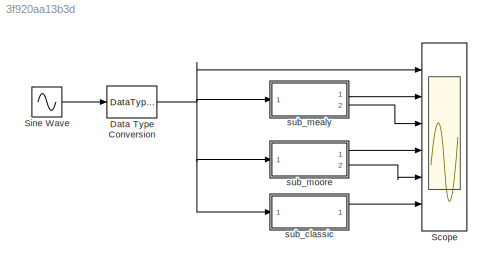
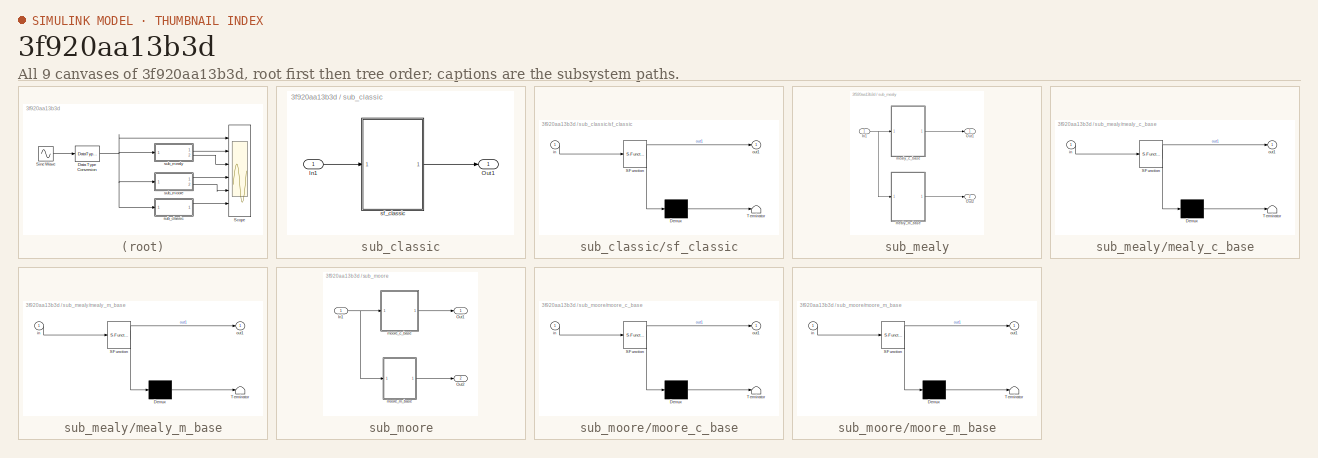
[diagram: thumbnail index - all 9 canvases of the model, root first then tree order]
MODEL slx_3f920aa13b3d
KIND model
CONFIG AbsTol = auto
CONFIG FixedStep = auto
CONFIG MaxStep = auto
CONFIG MinStep = auto
CONFIG RelTol = 1e-3
CONFIG SampleTimeConstraint = Unconstrained
CONFIG Solver = FixedStepDiscrete
CONFIG SolverMode = SingleTasking
CONFIG SolverName = FixedStepDiscrete
CONFIG StartTime = 0.0
CONFIG StopTime = 1
BLOCK [DataTypeConversion] Data Type Conversion
  OutDataTypeStr = fixdt(1,16,12)
  RndMeth = Floor
  SaturateOnIntegerOverflow = off
BLOCK [Scope] Scope
  NumInputPorts = 6
  Ports = [6]
  ScopeSpecificationString = Simulink.scopes.TimeScopeBlockCfg('CurrentConfiguration', extmgr.ConfigurationSet(extmgr.Configuration('Core','General UI',true),extmgr.Configuration('Core','Source UI',true),extmgr.Configuration('Sources','WiredSimulink',true,'DataLoggingSaveFormat','StructureWithTime','DataLoggingDecimation','1','DataLoggingDecimateData',true),extmgr.Configuration('Visuals','Time Domain',true,'SerializedDisplays...<+6464ch>
BLOCK [Sin] Sine Wave
  Amplitude = 4
  Frequency = 20
  Ports = [0, 1]
  SampleTime = 1/100
BLOCK [SubSystem] sub_classic
  Ports = [1, 1]
  RequestExecContextInheritance = off
  Variant = off
BLOCK [Inport] sub_classic/In1
  IconDisplay = Port number
BLOCK [Outport] sub_classic/Out1
  IconDisplay = Port number
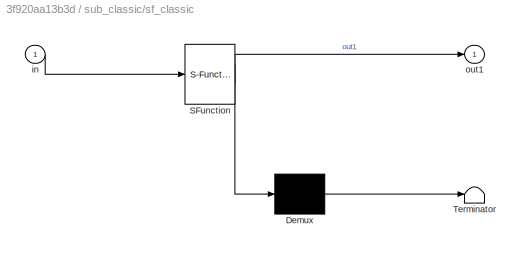
BLOCK [SubSystem] sub_classic/sf_classic
  ErrorFcn = Stateflow.Translate.translate
  PermitHierarchicalResolution = ExplicitOnly
  Ports = [1, 1]
  RequestExecContextInheritance = off
  SFBlockType = Chart
  TreatAsAtomicUnit = on
  Variant = off
BLOCK [Demux] sub_classic/sf_classic/ Demux 
  Outputs = 1
  Ports = [1, 1]
BLOCK [S-Function] sub_classic/sf_classic/ SFunction 
  EnableBusSupport = on
  FunctionName = sf_sfun
  PortCounts = [1 2]
  Ports = [1, 2]
  SFunctionDeploymentMode = off
  Tag = Stateflow S-Function sf_basic 5
BLOCK [Terminator] sub_classic/sf_classic/ Terminator 
BLOCK [Inport] sub_classic/sf_classic/in
  IconDisplay = Port number
BLOCK [Outport] sub_classic/sf_classic/out1
  IconDisplay = Port number
BLOCK [SubSystem] sub_mealy
  Ports = [1, 2]
  RequestExecContextInheritance = off
  Variant = off
BLOCK [Inport] sub_mealy/In1
  IconDisplay = Port number
BLOCK [Outport] sub_mealy/Out1
  IconDisplay = Port number
BLOCK [Outport] sub_mealy/Out2
  IconDisplay = Port number
  Port = 2
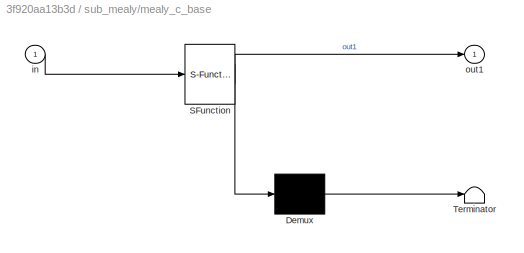
BLOCK [SubSystem] sub_mealy/mealy_c_base
  ErrorFcn = Stateflow.Translate.translate
  PermitHierarchicalResolution = ExplicitOnly
  Ports = [1, 1]
  RequestExecContextInheritance = off
  SFBlockType = Chart
  TreatAsAtomicUnit = on
  Variant = off
BLOCK [Demux] sub_mealy/mealy_c_base/ Demux 
  Outputs = 1
  Ports = [1, 1]
BLOCK [S-Function] sub_mealy/mealy_c_base/ SFunction 
  EnableBusSupport = on
  FunctionName = sf_sfun
  PortCounts = [1 2]
  Ports = [1, 2]
  SFunctionDeploymentMode = off
  Tag = Stateflow S-Function sf_basic 1
BLOCK [Terminator] sub_mealy/mealy_c_base/ Terminator 
BLOCK [Inport] sub_mealy/mealy_c_base/in
  IconDisplay = Port number
BLOCK [Outport] sub_mealy/mealy_c_base/out1
  IconDisplay = Port number
BLOCK [SubSystem] sub_mealy/mealy_m_base
  ErrorFcn = Stateflow.Translate.translate
  PermitHierarchicalResolution = ExplicitOnly
  Ports = [1, 1]
  RequestExecContextInheritance = off
  SFBlockType = Chart
  TreatAsAtomicUnit = on
  Variant = off
BLOCK [Demux] sub_mealy/mealy_m_base/ Demux 
  Outputs = 1
  Ports = [1, 1]
BLOCK [S-Function] sub_mealy/mealy_m_base/ SFunction 
  EnableBusSupport = on
  FunctionName = sf_sfun
  PortCounts = [1 2]
  Ports = [1, 2]
  SFunctionDeploymentMode = off
  Tag = Stateflow S-Function sf_basic 3
BLOCK [Terminator] sub_mealy/mealy_m_base/ Terminator 
BLOCK [Inport] sub_mealy/mealy_m_base/in
  IconDisplay = Port number
BLOCK [Outport] sub_mealy/mealy_m_base/out1
  IconDisplay = Port number
BLOCK [SubSystem] sub_moore
  Ports = [1, 2]
  RequestExecContextInheritance = off
  Variant = off
BLOCK [Inport] sub_moore/In1
  IconDisplay = Port number
BLOCK [Outport] sub_moore/Out1
  IconDisplay = Port number
BLOCK [Outport] sub_moore/Out2
  IconDisplay = Port number
  Port = 2
BLOCK [SubSystem] sub_moore/moore_c_base
  ErrorFcn = Stateflow.Translate.translate
  PermitHierarchicalResolution = ExplicitOnly
  Ports = [1, 1]
  RequestExecContextInheritance = off
  SFBlockType = Chart
  TreatAsAtomicUnit = on
  Variant = off
BLOCK [Demux] sub_moore/moore_c_base/ Demux 
  Outputs = 1
  Ports = [1, 1]
BLOCK [S-Function] sub_moore/moore_c_base/ SFunction 
  EnableBusSupport = on
  FunctionName = sf_sfun
  PortCounts = [1 2]
  Ports = [1, 2]
  SFunctionDeploymentMode = off
  Tag = Stateflow S-Function sf_basic 4
BLOCK [Terminator] sub_moore/moore_c_base/ Terminator 
BLOCK [Inport] sub_moore/moore_c_base/in
  IconDisplay = Port number
BLOCK [Outport] sub_moore/moore_c_base/out1
  IconDisplay = Port number
BLOCK [SubSystem] sub_moore/moore_m_base
  ErrorFcn = Stateflow.Translate.translate
  PermitHierarchicalResolution = ExplicitOnly
  Ports = [1, 1]
  RequestExecContextInheritance = off
  SFBlockType = Chart
  TreatAsAtomicUnit = on
  Variant = off
BLOCK [Demux] sub_moore/moore_m_base/ Demux 
  Outputs = 1
  Ports = [1, 1]
BLOCK [S-Function] sub_moore/moore_m_base/ SFunction 
  EnableBusSupport = on
  FunctionName = sf_sfun
  PortCounts = [1 2]
  Ports = [1, 2]
  SFunctionDeploymentMode = off
  Tag = Stateflow S-Function sf_basic 2
BLOCK [Terminator] sub_moore/moore_m_base/ Terminator 
BLOCK [Inport] sub_moore/moore_m_base/in
  IconDisplay = Port number
BLOCK [Outport] sub_moore/moore_m_base/out1
  IconDisplay = Port number
NET Data Type Conversion:1 -> Scope:1, sub_classic:1, sub_mealy:1, sub_moore:1
LINE Sine Wave:1 -> Data Type Conversion:1
LINE sub_classic/In1:1 -> sub_classic/sf_classic:1
LINE sub_classic/sf_classic:1 -> sub_classic/Out1:1
LINE sub_classic:1 -> Scope:6
NET sub_mealy/In1:1 -> sub_mealy/mealy_c_base:1, sub_mealy/mealy_m_base:1
LINE sub_mealy/mealy_c_base:1 -> sub_mealy/Out1:1
LINE sub_mealy/mealy_m_base:1 -> sub_mealy/Out2:1
LINE sub_mealy:1 -> Scope:2
LINE sub_mealy:2 -> Scope:3
NET sub_moore/In1:1 -> sub_moore/moore_c_base:1, sub_moore/moore_m_base:1
LINE sub_moore/moore_c_base:1 -> sub_moore/Out1:1
LINE sub_moore/moore_m_base:1 -> sub_moore/Out2:1
LINE sub_moore:1 -> Scope:4
LINE sub_moore:2 -> Scope:5
note: NET lines group one-source signal fan-out (src -> all destinations, sorted); 1:1 wires keep LINE
CHART sub_mealy/mealy_c_base states=3 transitions=8
  STATE_LABEL 'Init/'
  STATE_LABEL 'On1/'
  STATE_LABEL 'Off1/'
CHART sub_moore/moore_m_base states=3 transitions=8
  STATE_LABEL 'Init/\nout1 = int16(2);'
  STATE_LABEL 'On1/\nout1 = int16(1);'
  STATE_LABEL 'Off1/\nout1 = int16(0);'
CHART sub_mealy/mealy_m_base states=3 transitions=8
  STATE_LABEL 'Init/'
  STATE_LABEL 'On1/'
  STATE_LABEL 'Off1/'
CHART sub_moore/moore_c_base states=3 transitions=8
  STATE_LABEL 'Init/\nout1 = 2;'
  STATE_LABEL 'On1/\nout1 = 1;'
  STATE_LABEL 'Off1/\nout1 = 0;'
CHART sub_classic/sf_classic states=3 transitions=8
  STATE_LABEL 'Init/\nout1 = 2;'
  STATE_LABEL 'On1/\nout1 = 1;'
  STATE_LABEL 'Off1/\nout1 = 0;'
